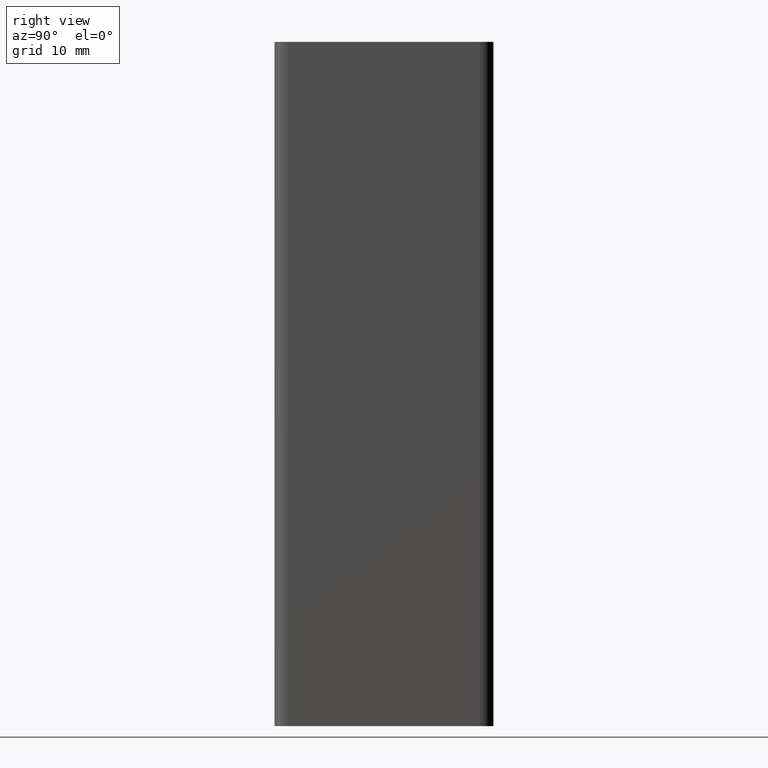
[diagram: clean part render]
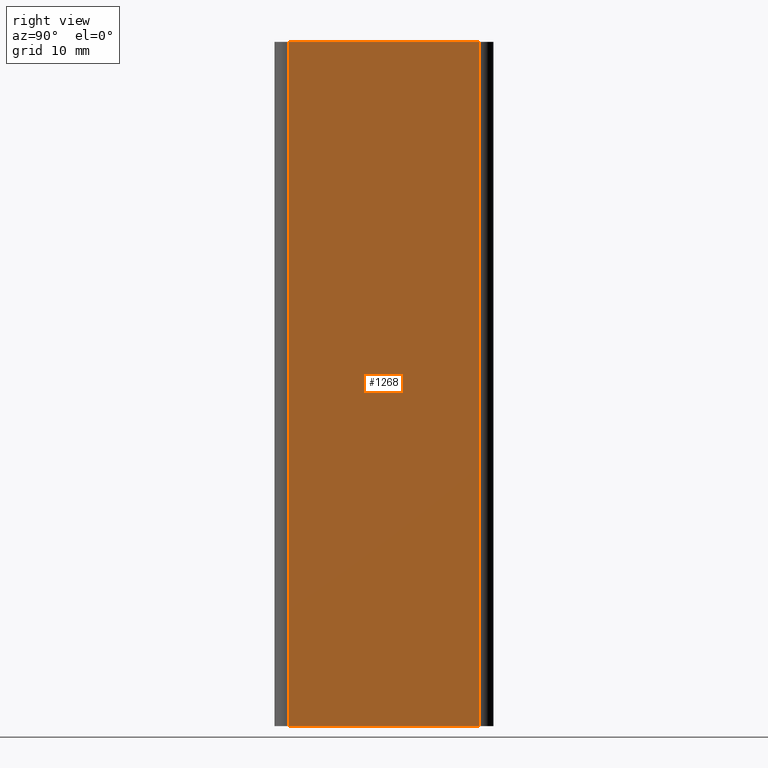
[diagram: same view with one face highlighted and labeled with its STEP entity id]
A machine part, right view. The second image highlights one B-rep face of the part: STEP entity #1268.
In plain terms, the highlighted planar face has unit normal (1, 0, 0).
Its self-contained STEP definition (entity closure, byte-faithful):
#52=PLANE('',#1395);
#115=FACE_OUTER_BOUND('',#183,.T.);
#183=EDGE_LOOP('',(#1103,#1104,#1105,#1106));
#302=LINE('',#2117,#425);
#309=LINE('',#2140,#432);
#310=LINE('',#2144,#433);
#311=LINE('',#2145,#434);
#425=VECTOR('',#1736,28.);
#432=VECTOR('',#1761,100.);
#433=VECTOR('',#1766,100.);
#434=VECTOR('',#1767,28.);
#612=VERTEX_POINT('',#2114);
#613=VERTEX_POINT('',#2116);
#620=VERTEX_POINT('',#2139);
#621=VERTEX_POINT('',#2143);
#789=EDGE_CURVE('',#613,#612,#302,.T.);
#801=EDGE_CURVE('',#620,#613,#309,.T.);
#803=EDGE_CURVE('',#621,#612,#310,.T.);
#804=EDGE_CURVE('',#620,#621,#311,.T.);
#1103=ORIENTED_EDGE('',*,*,#789,.T.);
#1104=ORIENTED_EDGE('',*,*,#803,.F.);
#1105=ORIENTED_EDGE('',*,*,#804,.F.);
#1106=ORIENTED_EDGE('',*,*,#801,.T.);
#1268=ADVANCED_FACE('',(#115),#52,.T.);
#1395=AXIS2_PLACEMENT_3D('',#2142,#1764,#1765);
#1736=DIRECTION('',(1.18952466924124E-16,-1.,0.));
#1761=DIRECTION('',(0.,0.,1.));
#1764=DIRECTION('center_axis',(1.,1.18952466924124E-16,0.));
#1765=DIRECTION('ref_axis',(-1.77635683940025E-16,1.,0.));
#1766=DIRECTION('',(0.,0.,1.));
#1767=DIRECTION('',(1.18952466924124E-16,-1.,0.));
#2114=CARTESIAN_POINT('',(10.,-10.,100.));
#2116=CARTESIAN_POINT('',(10.,18.,100.));
#2117=CARTESIAN_POINT('',(10.,-3.,100.));
#2139=CARTESIAN_POINT('',(10.,18.,0.));
#2140=CARTESIAN_POINT('',(10.,18.,0.));
#2142=CARTESIAN_POINT('Origin',(10.,-10.,0.));
#2143=CARTESIAN_POINT('',(10.,-10.,0.));
#2144=CARTESIAN_POINT('',(10.,-10.,0.));
#2145=CARTESIAN_POINT('',(10.,-3.,0.));